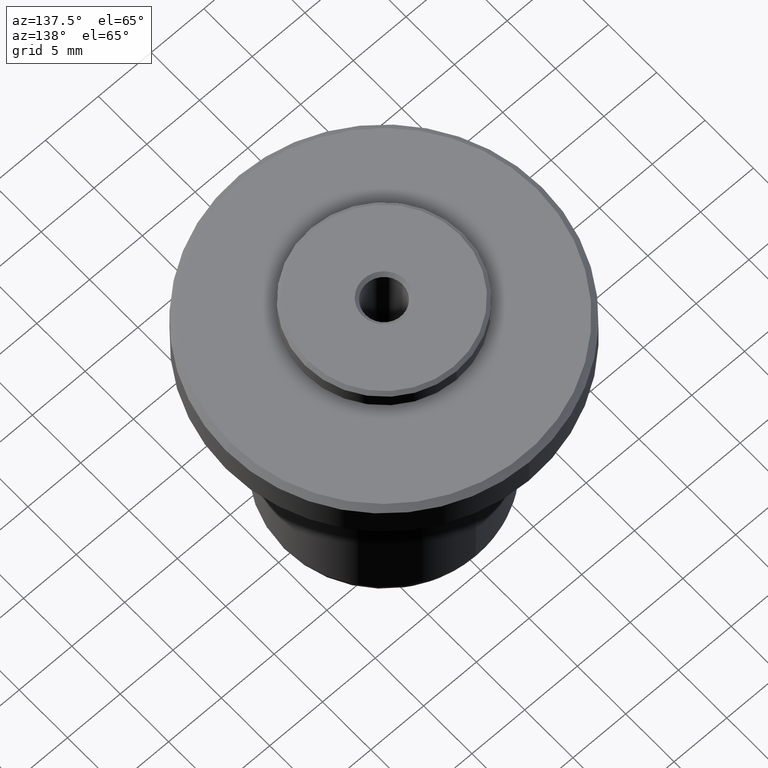
[diagram: clean part render]
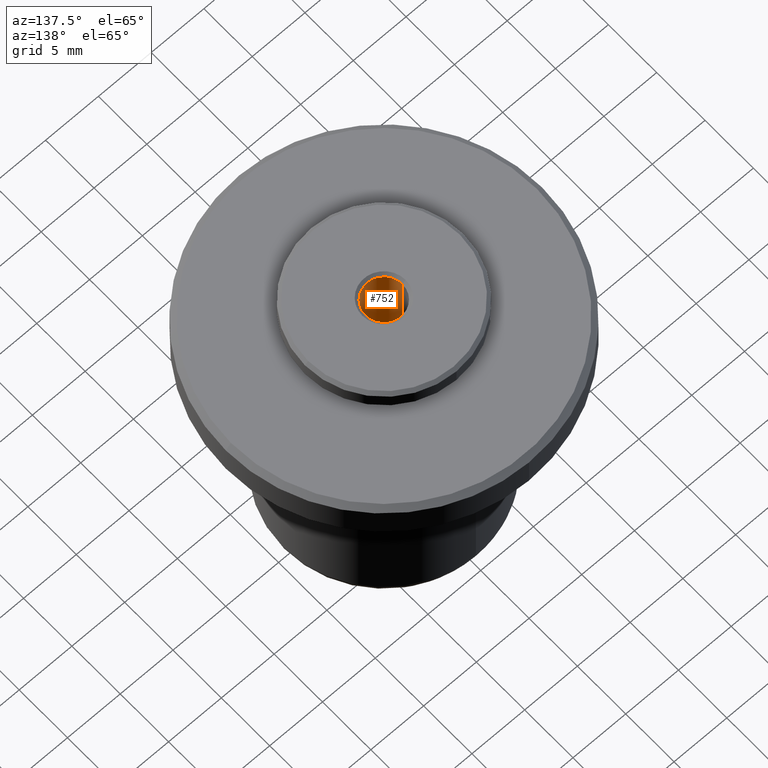
[diagram: same view with one face highlighted and labeled with its STEP entity id]
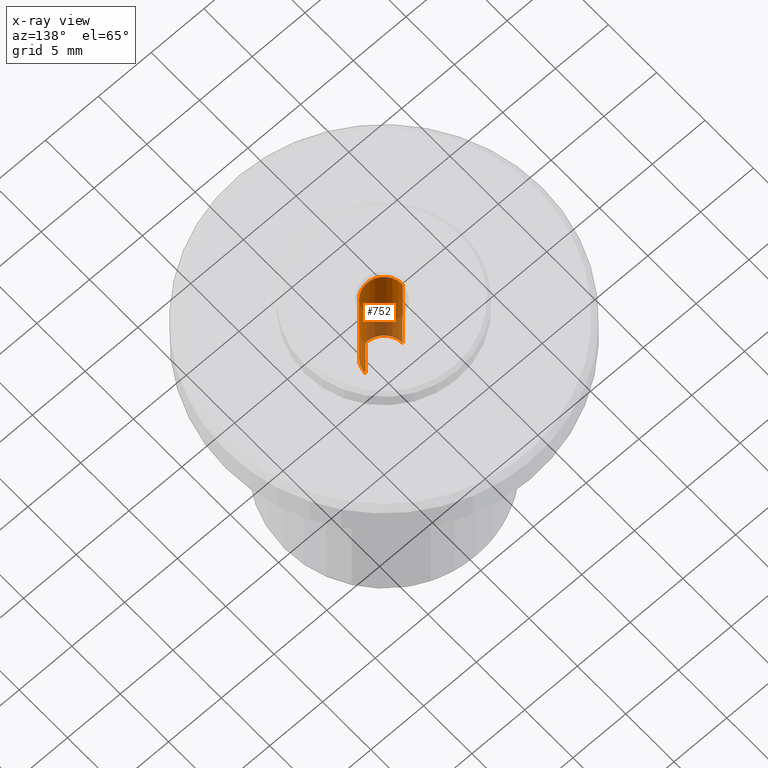
[diagram: x-ray of the same camera — body ghosted, the highlighted face saturated]
A machine part, auxiliary view. The second image highlights one B-rep face of the part: STEP entity #752.
The next image is the same camera in x-ray: the body ghosted, the highlighted face saturated — about 32% of this face is hidden behind the body in this view.
In plain terms, the highlighted cylindrical surface (edge-blend (fillet) strip) has radius 1.75 mm, axis along (-0, -0, 1).
Its self-contained STEP definition (entity closure, byte-faithful):
#71 = DIRECTION ( 'NONE',  ( -0.0000000000000000000, -0.0000000000000000000, 1.000000000000000000 ) ) ;
#92 = DIRECTION ( 'NONE',  ( 1.000000000000000000, 0.0000000000000000000, 0.0000000000000000000 ) ) ;
#101 = ORIENTED_EDGE ( 'NONE', *, *, #1880, .T. ) ;
#107 = CARTESIAN_POINT ( 'NONE',  ( 0.0000000000000000000, 0.0000000000000000000, 28.35674215500630200 ) ) ;
#241 = ORIENTED_EDGE ( 'NONE', *, *, #799, .F. ) ;
#285 = EDGE_CURVE ( 'NONE', #598, #943, #939, .T. ) ;
#319 = EDGE_LOOP ( 'NONE', ( #546, #1422, #101, #241 ) ) ;
#329 = CARTESIAN_POINT ( 'NONE',  ( 1.750000000000000000, 0.0000000000000000000, 15.44999999999999800 ) ) ;
#375 = DIRECTION ( 'NONE',  ( -0.0000000000000000000, -0.0000000000000000000, 1.000000000000000000 ) ) ;
#379 = VECTOR ( 'NONE', #71, 1000.000000000000000 ) ;
#489 = CARTESIAN_POINT ( 'NONE',  ( -1.750000000000000000, 2.143131898507868300E-016, 15.44999999999999800 ) ) ;
#498 = CARTESIAN_POINT ( 'NONE',  ( -1.750000000000000000, 2.143131898507868300E-016, 28.35674215500630200 ) ) ;
#546 = ORIENTED_EDGE ( 'NONE', *, *, #285, .F. ) ;
#580 = EDGE_CURVE ( 'NONE', #598, #1396, #1932, .T. ) ;
#598 = VERTEX_POINT ( 'NONE', #1792 ) ;
#623 = DIRECTION ( 'NONE',  ( 0.0000000000000000000, 0.0000000000000000000, 1.000000000000000000 ) ) ;
#647 = CIRCLE ( 'NONE', #695, 1.750000000000000000 ) ;
#695 = AXIS2_PLACEMENT_3D ( 'NONE', #1592, #623, #1744 ) ;
#752 = ADVANCED_FACE ( 'NONE', ( #1255 ), #818, .F. ) ;
#799 = EDGE_CURVE ( 'NONE', #943, #1697, #1202, .T. ) ;
#818 = CYLINDRICAL_SURFACE ( 'NONE', #1432, 1.750000000000000000 ) ;
#939 = CIRCLE ( 'NONE', #1191, 1.750000000000000000 ) ;
#943 = VERTEX_POINT ( 'NONE', #1144 ) ;
#1062 = DIRECTION ( 'NONE',  ( 0.0000000000000000000, 0.0000000000000000000, 1.000000000000000000 ) ) ;
#1144 = CARTESIAN_POINT ( 'NONE',  ( 1.750000000000000000, 0.0000000000000000000, 5.750000000000001800 ) ) ;
#1191 = AXIS2_PLACEMENT_3D ( 'NONE', #2035, #1062, #92 ) ;
#1202 = LINE ( 'NONE', #2012, #379 ) ;
#1255 = FACE_OUTER_BOUND ( 'NONE', #319, .T. ) ;
#1396 = VERTEX_POINT ( 'NONE', #489 ) ;
#1422 = ORIENTED_EDGE ( 'NONE', *, *, #580, .T. ) ;
#1432 = AXIS2_PLACEMENT_3D ( 'NONE', #107, #375, #1516 ) ;
#1516 = DIRECTION ( 'NONE',  ( 1.000000000000000000, 0.0000000000000000000, 0.0000000000000000000 ) ) ;
#1567 = VECTOR ( 'NONE', #1638, 1000.000000000000000 ) ;
#1592 = CARTESIAN_POINT ( 'NONE',  ( 0.0000000000000000000, 0.0000000000000000000, 15.44999999999999800 ) ) ;
#1638 = DIRECTION ( 'NONE',  ( -0.0000000000000000000, -0.0000000000000000000, 1.000000000000000000 ) ) ;
#1697 = VERTEX_POINT ( 'NONE', #329 ) ;
#1744 = DIRECTION ( 'NONE',  ( -1.000000000000000000, 0.0000000000000000000, 0.0000000000000000000 ) ) ;
#1792 = CARTESIAN_POINT ( 'NONE',  ( -1.750000000000000000, 2.143131898507868300E-016, 5.750000000000001800 ) ) ;
#1880 = EDGE_CURVE ( 'NONE', #1396, #1697, #647, .T. ) ;
#1932 = LINE ( 'NONE', #498, #1567 ) ;
#2012 = CARTESIAN_POINT ( 'NONE',  ( 1.750000000000000000, 0.0000000000000000000, 28.35674215500630200 ) ) ;
#2035 = CARTESIAN_POINT ( 'NONE',  ( 0.0000000000000000000, 0.0000000000000000000, 5.750000000000001800 ) ) ;